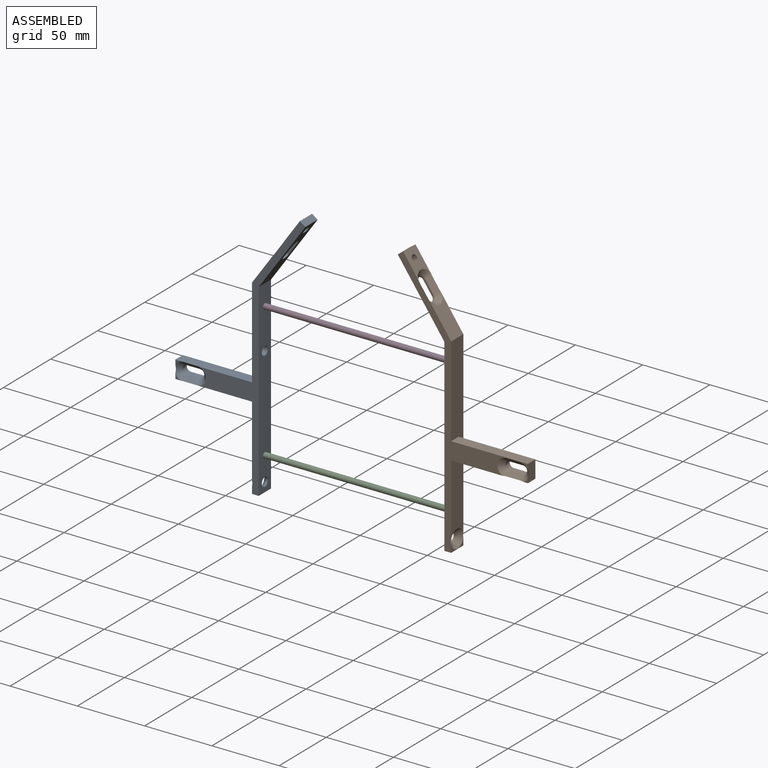
[diagram: assembled view]
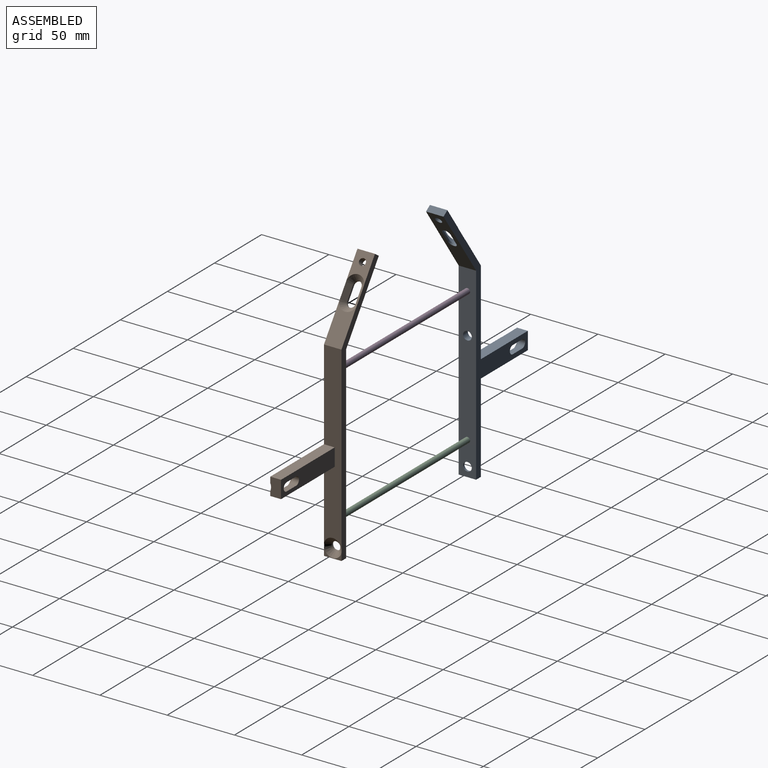
[diagram: assembled view, second angle]
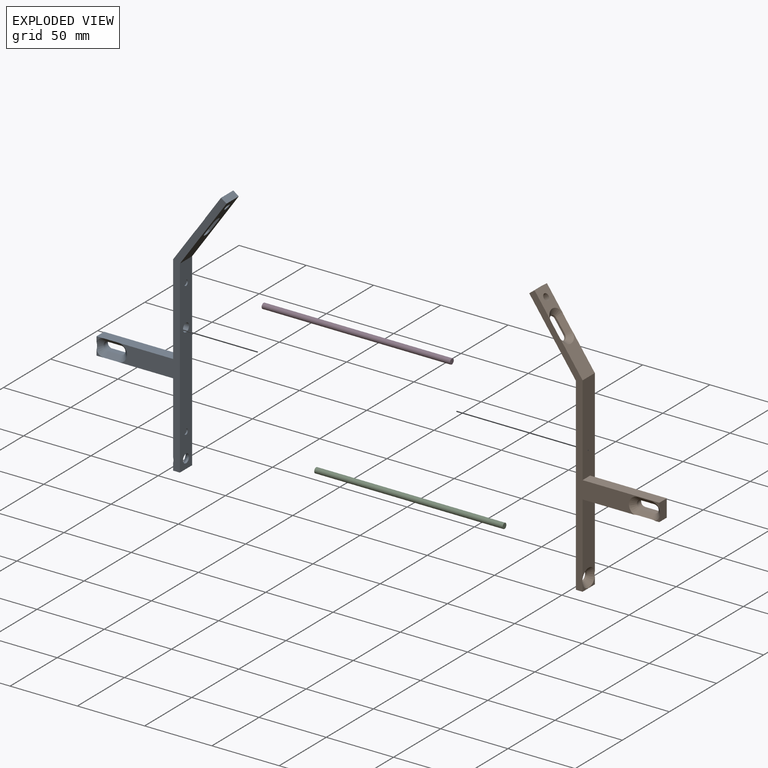
[diagram: exploded view]
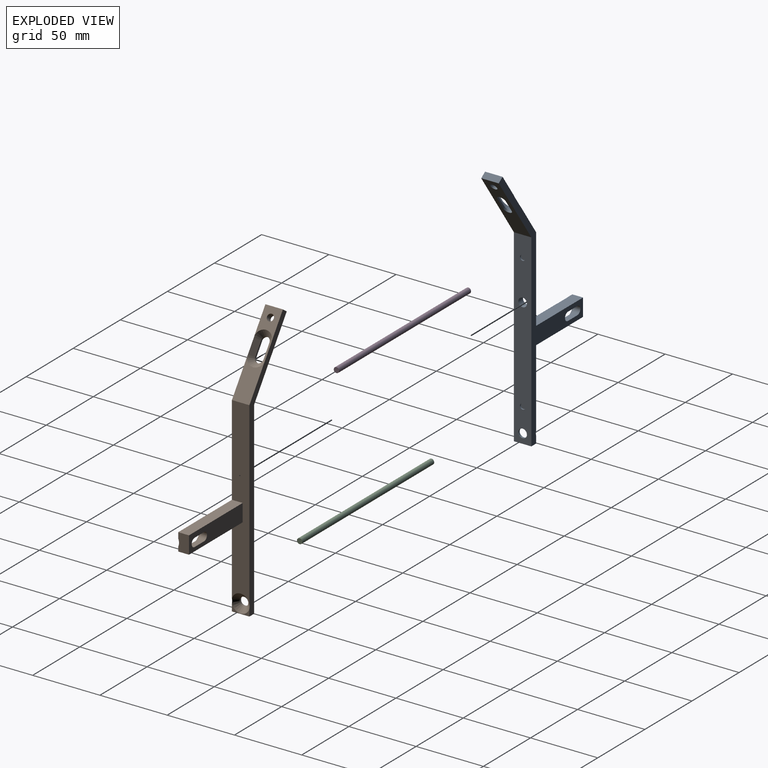
[diagram: exploded view, second angle]
ASSEMBLY  parts=4 mates=6
PART A: 40 faces, bbox 97.4x192.9x13.6 mm
  f0: plane 192.94x79.67mm, normal (0,0,1), area 1475.1mm2, adj f4,f5,f6,f7,f8,f10,f11,f12
  f1: plane 4.86x3.75mm, normal (0,0,1), area 6mm2, adj f25,f27,f32
  f2: plane 4.86x3.75mm, normal (0,0,1), area 6mm2, adj f26,f27,f32
  f3: plane 57x13mm, normal (0,0,-1), area 648.8mm2, adj f4,f25,f26,f27,f28,f29,f30,f31
  f4: plane 133.29x13mm, normal (-1,0,0), area 1548.4mm2, adj f0,f3,f5,f9,f14,f15,f25,f26
  f5: plane 23.23x16.26mm, normal (-0.82,0.57,0), area 315.2mm2, adj f0,f4,f9,f23
  f6: plane 16.67x13mm, normal (-0.82,0.57,0), area 191.6mm2, adj f0,f9,f11,f20,f24
  f7: plane 49.5x34.66mm, normal (0.82,-0.57,0), area 667.5mm2, adj f0,f9,f11,f12,f16,f17,f18,f19
  f8: plane 13x5.29mm, normal (-1,0,0), area 20.6mm2, adj f0,f9,f10,f14
  f9: plane 192.86x39.73mm, normal (0,0,-1), area 1010.4mm2, adj f4,f5,f6,f7,f8,f10,f11,f12
  f10: plane 13x5mm, normal (0,-1,0), area 65mm2, adj f0,f8,f9,f12
  f11: plane 13x4.1mm, normal (0.57,0.82,0), area 65mm2, adj f0,f6,f7,f9
  f12: plane 140.42x13mm, normal (1,0,0), area 1736mm2, adj f0,f7,f9,f10,f13,f15,f36,f38
  f13: cylinder r=3.2mm len=6.4mm, axis (-1,0,0), area 29.8mm2, adj f12,f14
  f14: cone r=3.2mm half-angle=45deg, axis (-1,0,0), area 153.9mm2, adj f0,f4,f8,f9,f13
  f15: cylinder r=3.2mm len=6.4mm, axis (-1,0,0), area 100.5mm2, adj f4,f12
  f16: plane 9.87x7.54mm, normal (0,0,-1), area 16.5mm2, adj f7,f17,f19,f22
  f17: cylinder r=3.1mm len=6.2mm, axis (-0.82,0.57,0), area 14.6mm2, adj f7,f16,f18,f20
  f18: plane 9.87x7.54mm, normal (0,0,1), area 16.5mm2, adj f7,f17,f19,f21
  f19: cylinder r=3.1mm len=6.2mm, axis (-0.82,0.57,0), area 14.6mm2, adj f7,f16,f18,f23
  f20: cone r=3.1mm half-angle=45deg, axis (-0.82,0.57,0), area 75.3mm2, adj f0,f6,f9,f17,f21,f22
  f21: plane 10.96x9.09mm, normal (-0.58,0.41,0.71), area 52.9mm2, adj f9,f18,f20,f23
  f22: plane 10.96x9.09mm, normal (-0.58,0.41,-0.71), area 52.9mm2, adj f0,f16,f20,f23
  f23: cone r=3.1mm half-angle=45deg, axis (-0.82,0.57,0), area 75.3mm2, adj f0,f5,f9,f19,f21,f22
  f24: cylinder r=2.5mm len=6.96mm, axis (-0.82,0.57,0), area 78.5mm2, adj f6,f7
  f25: plane 57.07x8.07mm, normal (0,-1,0), area 454.8mm2, adj f0,f1,f3,f4,f27,f32,f33,f35
  f26: plane 57.07x8.07mm, normal (0,1,0), area 454.8mm2, adj f0,f2,f3,f4,f27,f32,f34,f35
  f27: plane 13x8mm, normal (-1,0,0), area 101.8mm2, adj f1,f2,f3,f25,f26,f32
  f28: plane 10x4.5mm, normal (0,-1,0), area 45mm2, adj f3,f29,f31,f34
  f29: cylinder r=3.1mm len=6.2mm, axis (0,0,1), area 43.8mm2, adj f3,f28,f30,f32
  f30: plane 10x4.5mm, normal (0,1,0), area 45mm2, adj f3,f29,f31,f33
  f31: cylinder r=3.1mm len=6.2mm, axis (0,0,1), area 43.8mm2, adj f3,f28,f30,f35
  f32: cone r=3.1mm half-angle=45deg, axis (0,0,1), area 72.1mm2, adj f1,f2,f25,f26,f27,f29,f33,f34
  f33: plane 10x3.4mm, normal (0,0.71,0.71), area 48.1mm2, adj f25,f30,f32,f35
  f34: plane 10x3.4mm, normal (0,-0.71,0.71), area 48.1mm2, adj f26,f28,f32,f35
  f35: cone r=3.1mm half-angle=45deg, axis (0,0,1), area 75.3mm2, adj f0,f25,f26,f31,f33,f34
  f36: cylinder r=2mm len=4mm, axis (1,0,0), area 12.6mm2, adj f12,f37
  f37: plane 4x4mm, normal (1,0,0), area 12.6mm2, adj f36
  f38: cylinder r=2mm len=4mm, axis (1,0,0), area 12.6mm2, adj f12,f39
  f39: plane 4x4mm, normal (1,0,0), area 12.6mm2, adj f38
PART B: 38 faces, bbox 97.7x193.2x13.9 mm
  f0: plane 3.25x3.25mm, normal (0,0,1), area 4mm2, adj f24,f25,f33
  f1: plane 192.86x96.73mm, normal (0,0,1), area 1489mm2, adj f3,f4,f5,f6,f7,f9,f10,f11
  f2: plane 57x13mm, normal (0,0,-1), area 648.8mm2, adj f3,f23,f24,f25,f26,f27,f28,f29
  f3: plane 133.29x13mm, normal (1,0,0), area 1580.6mm2, adj f1,f2,f5,f8,f13,f23,f24
  f4: plane 16.67x13mm, normal (0.82,0.57,0), area 191.6mm2, adj f1,f8,f10,f21,f22
  f5: plane 23.23x16.26mm, normal (0.82,0.57,0), area 315.2mm2, adj f1,f3,f8,f18
  f6: plane 49.5x34.66mm, normal (-0.82,-0.57,0), area 667.5mm2, adj f1,f8,f10,f11,f14,f15,f16,f17
  f7: plane 13x5.29mm, normal (1,0,0), area 20.6mm2, adj f1,f8,f9,f13
  f8: plane 192.94x39.82mm, normal (0,0,-1), area 1010.4mm2, adj f3,f4,f5,f6,f7,f9,f10,f11
  f9: plane 13x5mm, normal (0,-1,0), area 65mm2, adj f1,f7,f8,f11
  f10: plane 13x4.1mm, normal (-0.57,0.82,0), area 65mm2, adj f1,f4,f6,f8
  f11: plane 140.42x13mm, normal (-1,0,0), area 1768.2mm2, adj f1,f6,f8,f9,f12,f34,f36
  f12: cylinder r=3.2mm len=6.4mm, axis (1,0,0), area 29.8mm2, adj f11,f13
  f13: cone r=3.2mm half-angle=45deg, axis (1,0,0), area 153.9mm2, adj f1,f3,f7,f8,f12
  f14: plane 9.87x7.54mm, normal (0,0,-1), area 16.5mm2, adj f6,f15,f17,f20
  f15: cylinder r=3.1mm len=6.2mm, axis (0.82,0.57,0), area 14.6mm2, adj f6,f14,f16,f18
  f16: plane 9.87x7.54mm, normal (0,0,1), area 16.5mm2, adj f6,f15,f17,f19
  f17: cylinder r=3.1mm len=6.2mm, axis (0.82,0.57,0), area 14.6mm2, adj f6,f14,f16,f21
  f18: cone r=3.1mm half-angle=45deg, axis (0.82,0.57,0), area 75.3mm2, adj f1,f5,f8,f15,f19,f20
  f19: plane 10.96x9.09mm, normal (0.58,0.41,0.71), area 52.9mm2, adj f8,f16,f18,f21
  f20: plane 10.96x9.09mm, normal (0.58,0.41,-0.71), area 52.9mm2, adj f1,f14,f18,f21
  f21: cone r=3.1mm half-angle=45deg, axis (0.82,0.57,0), area 75.3mm2, adj f1,f4,f8,f17,f19,f20
  f22: cylinder r=2.5mm len=6.96mm, axis (0.82,0.57,0), area 78.5mm2, adj f4,f6
  f23: plane 57x8mm, normal (0,1,0), area 456mm2, adj f1,f2,f3,f25
  f24: plane 57.43x8.43mm, normal (0,-1,0), area 447.8mm2, adj f0,f1,f2,f3,f25,f30,f31,f33
  f25: plane 13x8mm, normal (1,0,0), area 101.8mm2, adj f0,f1,f2,f23,f24,f33
  f26: plane 10x4.5mm, normal (0,-1,0), area 45mm2, adj f2,f27,f29,f32
  f27: cylinder r=3.1mm len=6.2mm, axis (0,0,1), area 43.8mm2, adj f2,f26,f28,f30
  f28: plane 10x4.5mm, normal (0,1,0), area 45mm2, adj f2,f27,f29,f31
  f29: cylinder r=3.1mm len=6.2mm, axis (0,0,1), area 43.8mm2, adj f2,f26,f28,f33
  f30: cone r=3.1mm half-angle=45deg, axis (0,0,1), area 74.3mm2, adj f1,f24,f27,f31,f32
  f31: plane 10x2.9mm, normal (0,0.71,0.71), area 41mm2, adj f24,f28,f30,f33
  f32: plane 10x3.5mm, normal (0,-0.71,0.71), area 49.5mm2, adj f1,f26,f30,f33
  f33: cone r=3.1mm half-angle=45deg, axis (0,0,1), area 71.1mm2, adj f0,f1,f24,f25,f29,f31,f32
  f34: cylinder r=2mm len=4mm, axis (-1,0,0), area 12.6mm2, adj f11,f35
  f35: plane 4x4mm, normal (-1,0,0), area 12.6mm2, adj f34
  f36: cylinder r=2mm len=4mm, axis (-1,0,0), area 12.6mm2, adj f11,f37
  f37: plane 4x4mm, normal (-1,0,0), area 12.6mm2, adj f36
PART C: 3 faces, bbox 4x140x4 mm
  f0: cylinder r=2mm len=140mm, axis (0,1,0), area 1759.3mm2, adj f1,f2
  f1: plane 4x4mm, normal (0,-1,0), area 12.6mm2, adj f0
  f2: plane 4x4mm, normal (0,1,0), area 12.6mm2, adj f0
PART D: same geometry as C
PLACE A rot(axis=(1,0,0),90deg) t=(-182.08,109.13,107.59)mm
PLACE B rot(axis=(1,0,0),90deg) t=(-34.08,109.13,107.59)mm
PLACE C rot(axis=(0,0,-1),90deg) t=(-108.08,109.13,61.59)mm
PLACE D rot(axis=(-0.58,-0.58,-0.58),120deg) t=(-108.08,109.13,161.59)mm
MATE planar A.f38 <-> C.f0  axis (1,0,0) through (-178.08,109.13,61.59)mm
MATE planar A.f36 <-> D.f0  axis (1,0,0) through (-178.08,109.13,161.59)mm
MATE planar D.f0 <-> B.f36  axis (1,0,0) through (-38.08,109.13,161.59)mm
MATE slider D.f0 <-> A.f36  axis (1,0,0) through (-178.08,109.13,161.59)mm
MATE slider D.f0 <-> B.f36  axis (1,0,0) through (-38.08,109.13,161.59)mm
MATE slider C.f0 <-> A.f38  axis (1,0,0) through (-108.08,109.13,61.59)mm
